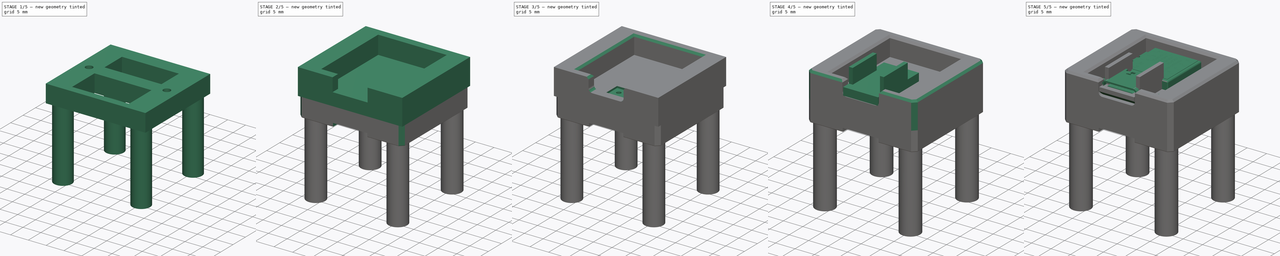
[diagram: build sequence overview — one tinted view per stage of 5, left to right]
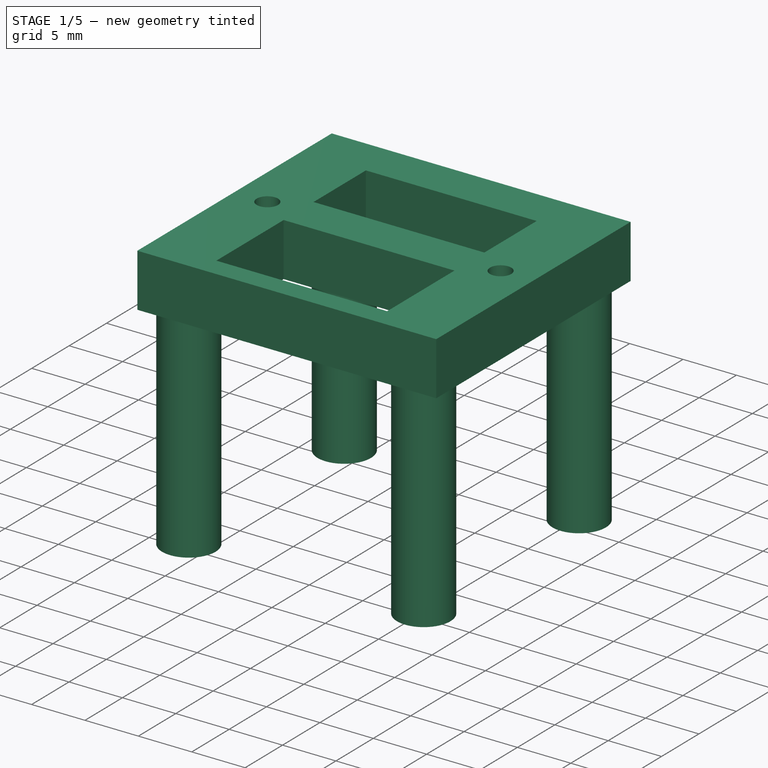
[diagram: stage 1 of 5 — iso view after this stage's code; geometry added in this stage tinted green]
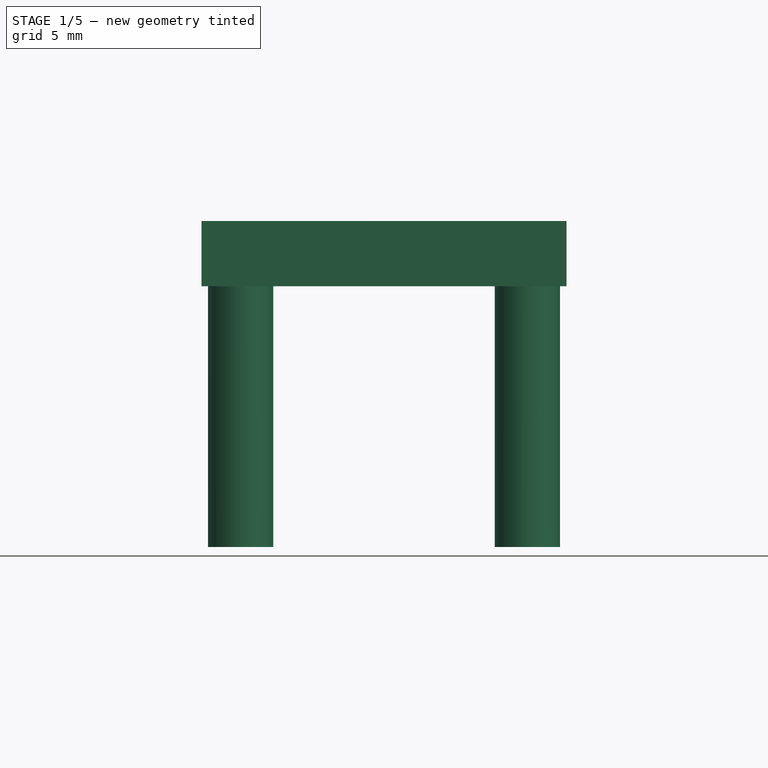
[diagram: stage 1 of 5 — front view after this stage's code; geometry added in this stage tinted green]
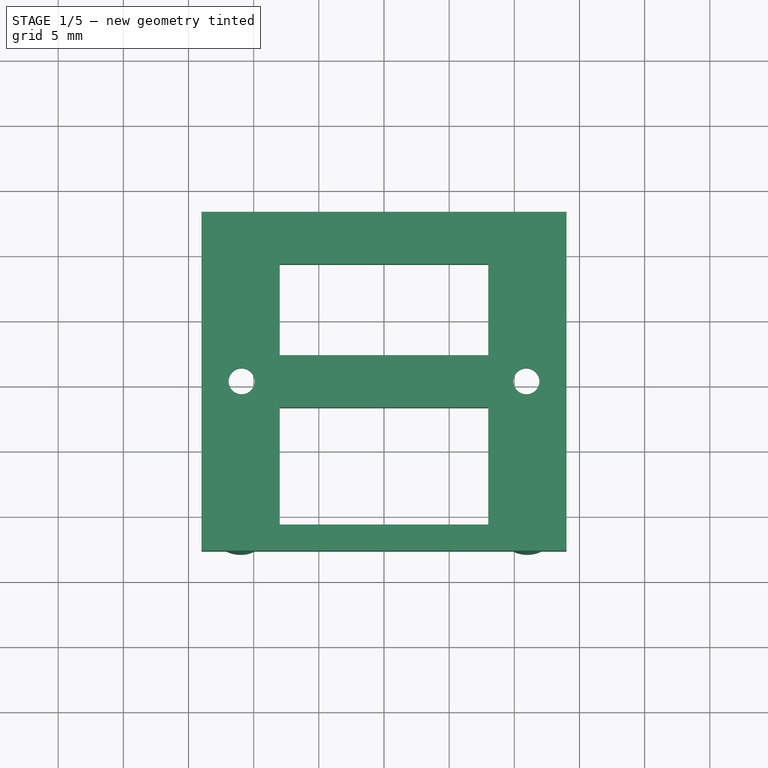
[diagram: stage 1 of 5 — top view after this stage's code; geometry added in this stage tinted green]
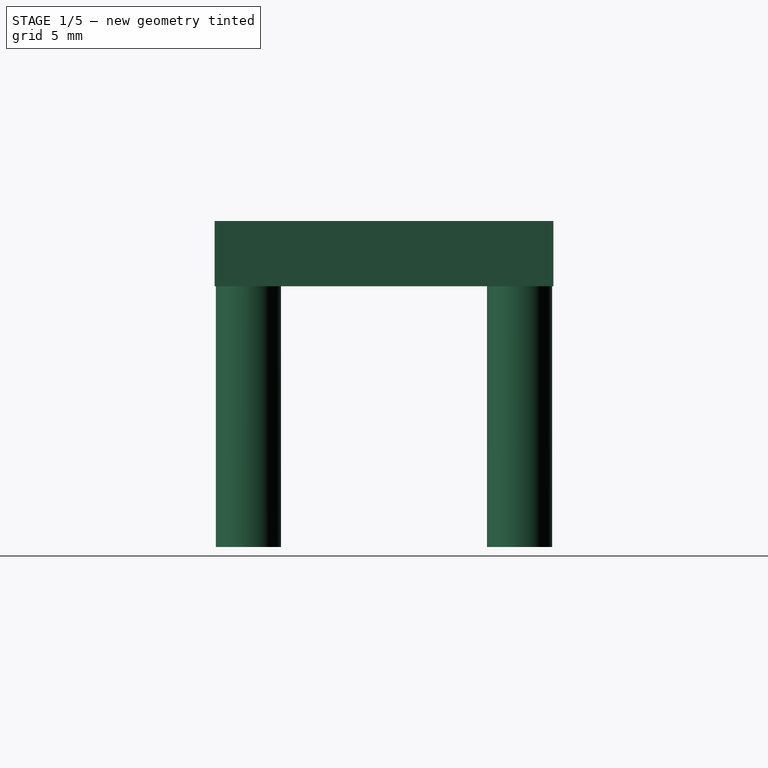
[diagram: stage 1 of 5 — right view after this stage's code; geometry added in this stage tinted green]
FCSTD DOCUMENT  (FreeCAD 0.20R29177 +426 (Git))
Label: Seeed XIAO programming platform
License: All rights reserved
LicenseURL: http://en.wikipedia.org/wiki/All_rights_reserved
objects: Sketcher::SketchObject×18, PartDesign::Pocket×12, PartDesign::Pad×6, PartDesign::Chamfer×6, Part::Feature×5, Part::FeaturePython×3, PartDesign::Body×3, Part::Compound2×1, App::DocumentObjectGroup×1, PartDesign::Fillet×1
note: 79 computed .brp shape members not serialized (recipe doc carries the construction recipe); baked Part::Feature solids carry a one-line shape summary decoded from their .brp

FEATURE [Sketcher::SketchObject] Sketch006
  AttachmentOffset = pos=(0,0,-3.5) rot=(0,0,1;0rad)
  FullyConstrained = true
  MapMode = 5
  Placement = pos=(0,0,-3.5) rot=(0,0,1;0rad)
  Support = -> [XY_Plane001]
  sketch-geometry (8):
    g0: LineSegment StartX=-14 StartY=13 StartZ=0 EndX=14 EndY=13 EndZ=0
    g1: LineSegment StartX=14 StartY=13 StartZ=0 EndX=14 EndY=-13 EndZ=0
    g2: LineSegment StartX=14 StartY=-13 StartZ=0 EndX=-14 EndY=-13 EndZ=0
    g3: LineSegment StartX=-14 StartY=-13 StartZ=0 EndX=-14 EndY=13 EndZ=0
    g4: LineSegment StartX=8 StartY=-11 StartZ=0 EndX=-8 EndY=-11 EndZ=0
    g5: LineSegment StartX=-8 StartY=-11 StartZ=0 EndX=-8 EndY=9 EndZ=0
    g6: LineSegment StartX=-8 StartY=9 StartZ=0 EndX=8 EndY=9 EndZ=0
    g7: LineSegment StartX=8 StartY=9 StartZ=0 EndX=8 EndY=-11 EndZ=0
  constraints (24):
    c: Coincident(g0,g1)
    c: Coincident(g1,g2)
    c: Coincident(g2,g3)
    c: Coincident(g3,g0)
    c: Horizontal(g0)
    c: Horizontal(g2)
    c: Vertical(g1)
    c: Vertical(g3)
    c: DistanceY(g-1,g0) = 13
    c: DistanceY(g2,g-1) = 13
    c: DistanceX(g0,g-1) = 14
    c: DistanceX(g-1,g0) = 14
    c: Coincident(g4,g5)
    c: Coincident(g5,g6)
    c: Coincident(g6,g7)
    c: Coincident(g7,g4)
    c: Horizontal(g4)
    c: Horizontal(g6)
    c: Vertical(g5)
    c: Vertical(g7)
    c: DistanceY(g4,g-1) = 11
    c: DistanceX(g5,g-1) = 8
    c: DistanceY(g-1,g5) = 9
    c: DistanceX(g-1,g6) = 8
FEATURE [PartDesign::Pad] Pad001  label="Feet_Support"
  Direction = (0,0,1)
  Length = 5
  Length2 = 10
  Profile = -> Sketch006
  ReferenceAxis = -> Sketch006 [N_Axis]
  Reversed = true
  Type = 0
FEATURE [Sketcher::SketchObject] Sketch007
  AttachmentOffset = pos=(0,0,-3.51) rot=(0,0,1;0rad)
  FullyConstrained = true
  MapMode = 5
  Placement = pos=(0,0,-3.51) rot=(0,0,1;0rad)
  Support = -> [XY_Plane001]
  sketch-geometry (8):
    g0: LineSegment StartX=-11 StartY=10.4 StartZ=0 EndX=11 EndY=10.4 EndZ=0
    g1: LineSegment StartX=11 StartY=10.4 StartZ=0 EndX=11 EndY=-10.4 EndZ=0
    g2: LineSegment StartX=11 StartY=-10.4 StartZ=0 EndX=-11 EndY=-10.4 EndZ=0
    g3: LineSegment StartX=-11 StartY=-10.4 StartZ=0 EndX=-11 EndY=10.4 EndZ=0
    g4: Circle CenterX=11 CenterY=-10.4 CenterZ=0 NormalX=0 NormalY=0 NormalZ=1 AngleXU=0 Radius=2.5
    g5: Circle CenterX=11 CenterY=10.4 CenterZ=0 NormalX=0 NormalY=0 NormalZ=1 AngleXU=0 Radius=2.5
    g6: Circle CenterX=-11 CenterY=-10.4 CenterZ=0 NormalX=0 NormalY=0 NormalZ=1 AngleXU=0 Radius=2.5
    g7: Circle CenterX=-11 CenterY=10.4 CenterZ=0 NormalX=0 NormalY=0 NormalZ=1 AngleXU=0 Radius=2.5
  constraints (20):
    c: Coincident(g0,g1)
    c: Coincident(g1,g2)
    c: Coincident(g2,g3)
    c: Coincident(g3,g0)
    c: Horizontal(g0)
    c: Horizontal(g2)
    c: Vertical(g1)
    c: Vertical(g3)
    c: DistanceX(g-1,g0) = 11
    c: DistanceX(g0,g-1) = 11
    c: DistanceY(g1,g-1) = 10.4
    c: DistanceY(g-1,g0) = 10.4
    c: Coincident(g4,g1)
    c: Coincident(g5,g0)
    c: Coincident(g6,g2)
    c: Equal(g5,g4)
    c: Equal(g4,g6)
    c: Diameter(g4) = 5
    c: Coincident(g7,g0)
    c: Equal(g7,g4)
FEATURE [PartDesign::Pad] Pad002  label="Feet"
  BaseFeature = -> Pad001
  Direction = (0,0,1)
  Length = 25
  Length2 = 10
  Profile = -> Sketch007
  ReferenceAxis = -> Sketch007 [N_Axis]
  Reversed = true
  Type = 0
FEATURE [Sketcher::SketchObject] Sketch008
  AttachmentOffset = pos=(0,0,-8.6) rot=(0,0,1;0rad)
  FullyConstrained = false
  MapMode = 5
  Placement = pos=(0,0,-8.6) rot=(0,0,1;0rad)
  Support = -> [XY_Plane001]
  sketch-geometry (4):
    g0: LineSegment StartX=0 StartY=0 StartZ=0 EndX=-10.9234 EndY=0 EndZ=0
    g1: LineSegment StartX=0 StartY=0 StartZ=0 EndX=10.9234 EndY=0 EndZ=0
    g2: Circle CenterX=-10.9234 CenterY=0 CenterZ=0 NormalX=0 NormalY=0 NormalZ=1 AngleXU=0 Radius=1.65
    g3: Circle CenterX=10.9234 CenterY=0 CenterZ=0 NormalX=0 NormalY=0 NormalZ=1 AngleXU=0 Radius=1.65
  constraints (9):
    c: Coincident(g0,g-1)
    c: PointOnObject(g0,g-1)
    c: Coincident(g1,g0)
    c: PointOnObject(g1,g-1)
    c: Equal(g0,g1)
    c: Coincident(g2,g0)
    c: Coincident(g3,g1)
    c: Equal(g2,g3)
    c: Diameter(g2) = 3.3
FEATURE [PartDesign::Pocket] Pocket004  label="Screw_Head_Socket"
  BaseFeature = -> Pad002
  Direction = (0,0,-1)
  Length = 3
  Length2 = 5
  Profile = -> Sketch008
  ReferenceAxis = -> Sketch008 [N_Axis]
  Reversed = true
  Type = 0
FEATURE [Sketcher::SketchObject] Sketch009  label="Screw_Through_Hole_Sketch"
  AttachmentOffset = pos=(0,0,-7.05) rot=(0,0,1;0rad)
  FullyConstrained = false
  MapMode = 5
  Placement = pos=(0,0,-7.05) rot=(0,0,1;0rad)
  Support = -> [XY_Plane001]
  sketch-geometry (4):
    g0: LineSegment StartX=0 StartY=0 StartZ=0 EndX=-10.9234 EndY=0 EndZ=0
    g1: LineSegment StartX=0 StartY=0 StartZ=0 EndX=10.9234 EndY=0 EndZ=0
    g2: Circle CenterX=-10.9234 CenterY=0 CenterZ=0 NormalX=0 NormalY=0 NormalZ=1 AngleXU=0 Radius=1
    g3: Circle CenterX=10.9234 CenterY=0 CenterZ=0 NormalX=0 NormalY=0 NormalZ=1 AngleXU=0 Radius=1
  constraints (9):
    c: Coincident(g0,g-1)
    c: PointOnObject(g0,g-1)
    c: Coincident(g1,g0)
    c: PointOnObject(g1,g-1)
    c: Equal(g0,g1)
    c: Coincident(g2,g0)
    c: Coincident(g3,g1)
    c: Equal(g2,g3)
    c: Diameter(g2) = 2
FEATURE [PartDesign::Pocket] Pocket005  label="Screw_Through_Hole_Pocket"
  BaseFeature = -> Pocket004
  Direction = (0,0,-1)
  Length = 4
  Length2 = 5
  Profile = -> Sketch009
  ReferenceAxis = -> Sketch009 [N_Axis]
  Reversed = true
  Type = 0
FEATURE [Sketcher::SketchObject] Sketch011
  AttachmentOffset = pos=(0,0,-3.5) rot=(0,0,1;0rad)
  FullyConstrained = true
  MapMode = 5
  Placement = pos=(0,0,-3.5) rot=(0,0,1;0rad)
  Support = -> [XY_Plane001]
  sketch-geometry (4):
    g0: LineSegment StartX=-8 StartY=2 StartZ=0 EndX=8 EndY=2 EndZ=0
    g1: LineSegment StartX=8 StartY=2 StartZ=0 EndX=8 EndY=-2 EndZ=0
    g2: LineSegment StartX=8 StartY=-2 StartZ=0 EndX=-8 EndY=-2 EndZ=0
    g3: LineSegment StartX=-8 StartY=-2 StartZ=0 EndX=-8 EndY=2 EndZ=0
  constraints (12):
    c: Coincident(g0,g1)
    c: Coincident(g1,g2)
    c: Coincident(g2,g3)
    c: Coincident(g3,g0)
    c: Horizontal(g0)
    c: Horizontal(g2)
    c: Vertical(g1)
    c: Vertical(g3)
    c: DistanceX(g0,g-1) = 8
    c: DistanceX(g-1,g1) = 8
    c: DistanceY(g-1,g0) = 2
    c: DistanceY(g2,g-1) = 2
FEATURE [PartDesign::Pad] Pad003
  BaseFeature = -> Pocket005
  Direction = (0,0,1)
  Length = 5
  Length2 = 10
  Profile = -> Sketch011
  ReferenceAxis = -> Sketch011 [N_Axis]
  Reversed = true
  Type = 0
FEATURE [Sketcher::SketchObject] Sketch012  label="Screw through hole"
  FullyConstrained = true
  MapMode = 5
  Placement = pos=(0,0,-8.5) rot=(1,0,0;3.14159rad)
  Support = -> [Pad003]
  sketch-geometry (1):
    g0: Circle CenterX=0 CenterY=0 CenterZ=0 NormalX=0 NormalY=0 NormalZ=1 AngleXU=0 Radius=0.8
  constraints (2):
    c: Coincident(g0,g-1)
    c: Diameter(g0) = 1.6
FEATURE [PartDesign::Pocket] Pocket007
  BaseFeature = -> Pad003
  Direction = (0,0,1)
  Length = 4
  Length2 = 5
  Profile = -> Sketch012
  ReferenceAxis = -> Sketch012 [N_Axis]
  Type = 0
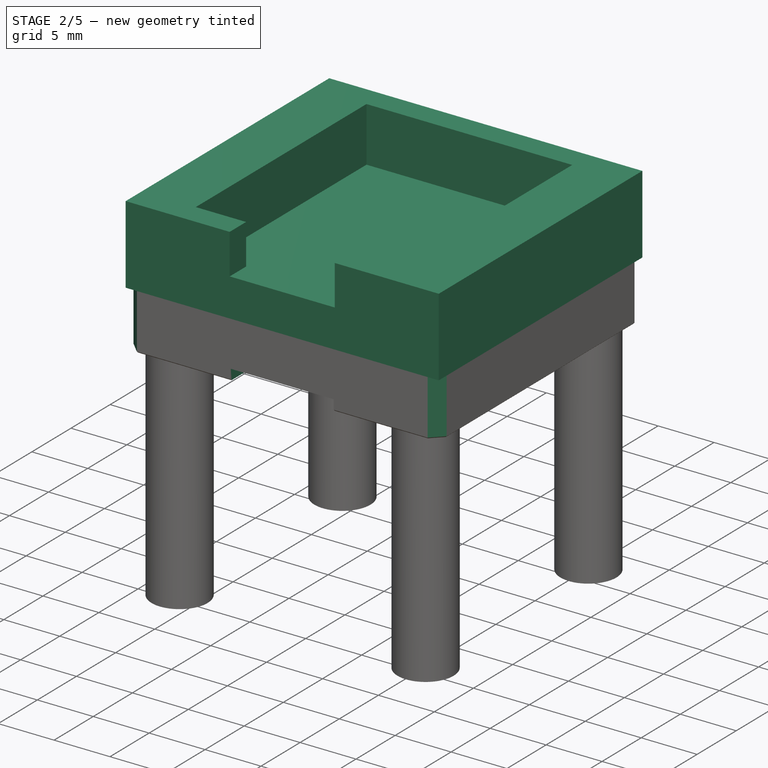
[diagram: stage 2 of 5 — iso view after this stage's code; geometry added in this stage tinted green]
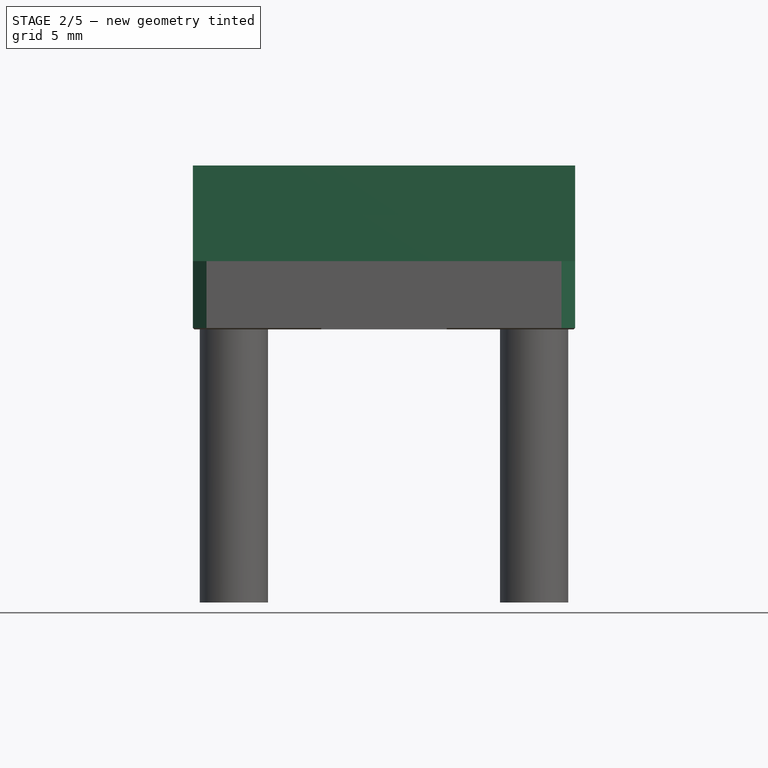
[diagram: stage 2 of 5 — front view after this stage's code; geometry added in this stage tinted green]
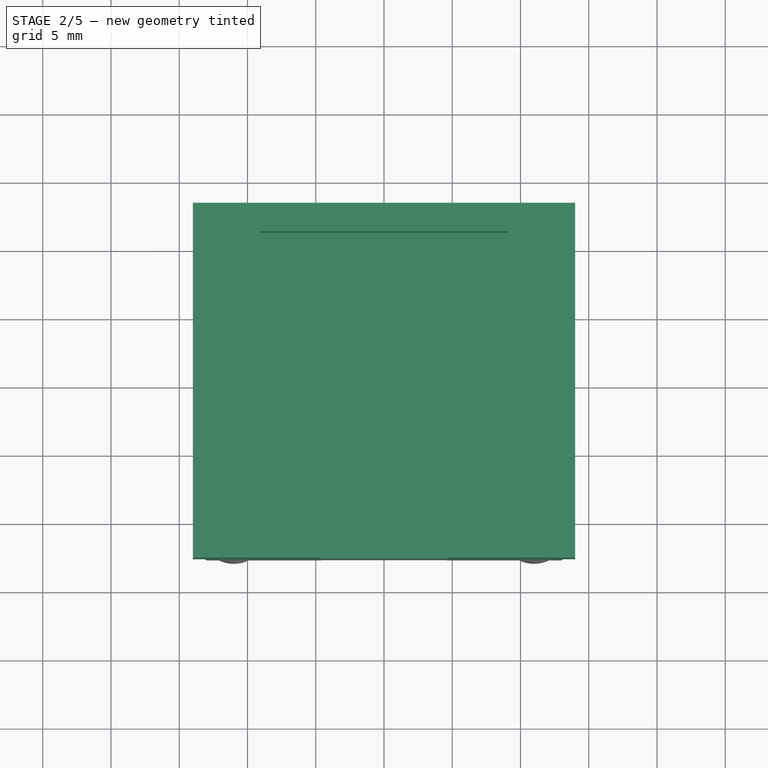
[diagram: stage 2 of 5 — top view after this stage's code; geometry added in this stage tinted green]
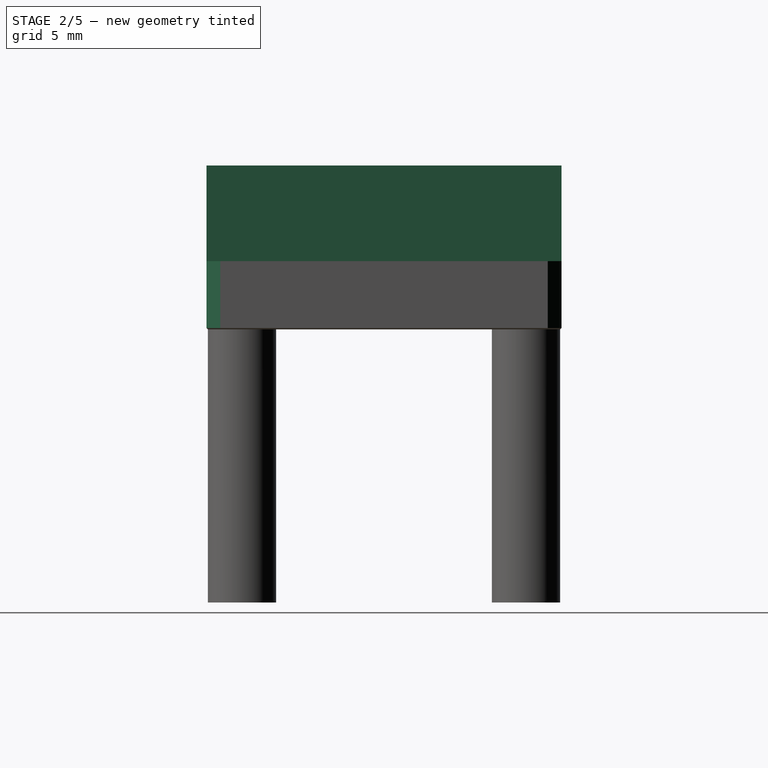
[diagram: stage 2 of 5 — right view after this stage's code; geometry added in this stage tinted green]
FEATURE [PartDesign::Pad] Pad
  Direction = (0,0,1)
  Length = 7
  Length2 = 10
  Midplane = true
  Profile = -> Sketch
  ReferenceAxis = -> Sketch [N_Axis]
  Type = 0
FEATURE [Sketcher::SketchObject] Sketch001
  AttachmentOffset = pos=(0,0,-1.4) rot=(0,0,1;0rad)
  FullyConstrained = true
  MapMode = 5
  Placement = pos=(0,0,-1.4) rot=(0,0,1;0rad)
  Support = -> [XY_Plane]
  sketch-geometry (4):
    g0: LineSegment StartX=-9.2 StartY=10.9 StartZ=0 EndX=9.2 EndY=10.9 EndZ=0
    g1: LineSegment StartX=9.2 StartY=10.9 StartZ=0 EndX=9.2 EndY=-10.9 EndZ=0
    g2: LineSegment StartX=9.2 StartY=-10.9 StartZ=0 EndX=-9.2 EndY=-10.9 EndZ=0
    g3: LineSegment StartX=-9.2 StartY=-10.9 StartZ=0 EndX=-9.2 EndY=10.9 EndZ=0
  constraints (12):
    c: Coincident(g0,g1)
    c: Coincident(g1,g2)
    c: Coincident(g2,g3)
    c: Coincident(g3,g0)
    c: Horizontal(g0)
    c: Horizontal(g2)
    c: Vertical(g1)
    c: Vertical(g3)
    c: DistanceX(g0,g-1) = 9.2
    c: DistanceX(g-1,g0) = 9.2
    c: DistanceY(g2,g-1) = 10.9
    c: DistanceY(g-1,g0) = 10.9
FEATURE [PartDesign::Pocket] Pocket
  BaseFeature = -> Pad
  Direction = (0,0,-1)
  Length = 5
  Length2 = 5
  Profile = -> Sketch001
  ReferenceAxis = -> Sketch001 [N_Axis]
  Reversed = true
  Type = 0
FEATURE [Sketcher::SketchObject] Sketch002
  AttachmentOffset = pos=(0,0,-0.1) rot=(0,0,1;0rad)
  FullyConstrained = true
  MapMode = 5
  Placement = pos=(0,0,-0.1) rot=(0,0,1;0rad)
  Support = -> [XY_Plane]
  sketch-geometry (4):
    g0: LineSegment StartX=-4.7 StartY=-10.48 StartZ=0 EndX=4.7 EndY=-10.48 EndZ=0
    g1: LineSegment StartX=4.7 StartY=-10.48 StartZ=0 EndX=4.7 EndY=-13.48 EndZ=0
    g2: LineSegment StartX=4.7 StartY=-13.48 StartZ=0 EndX=-4.7 EndY=-13.48 EndZ=0
    g3: LineSegment StartX=-4.7 StartY=-13.48 StartZ=0 EndX=-4.7 EndY=-10.48 EndZ=0
  constraints (12):
    c: Coincident(g0,g1)
    c: Coincident(g1,g2)
    c: Coincident(g2,g3)
    c: Coincident(g3,g0)
    c: Horizontal(g0)
    c: Horizontal(g2)
    c: Vertical(g1)
    c: Vertical(g3)
    c: DistanceY(g0,g-1) = 10.48
    c: DistanceX(g2,g-1) = 4.7
    c: DistanceX(g1) = 4.7
    c: DistanceY(g2,g0) = 3
FEATURE [PartDesign::Pocket] Pocket001
  BaseFeature = -> Pocket
  Direction = (0,0,-1)
  Length = 5
  Length2 = 5
  Profile = -> Sketch002
  ReferenceAxis = -> Sketch002 [N_Axis]
  Reversed = true
  Type = 0
FEATURE [Sketcher::SketchObject] Sketch013
  AttachmentOffset = pos=(0,0,-8.54) rot=(0,0,1;0rad)
  FullyConstrained = true
  MapMode = 5
  Placement = pos=(0,0,-8.54) rot=(0,0,1;0rad)
  Support = -> [XY_Plane001]
  sketch-geometry (4):
    g0: LineSegment StartX=-4.6 StartY=2 StartZ=0 EndX=4.6 EndY=2 EndZ=0
    g1: LineSegment StartX=4.6 StartY=2 StartZ=0 EndX=4.6 EndY=-13 EndZ=0
    g2: LineSegment StartX=4.6 StartY=-13 StartZ=0 EndX=-4.6 EndY=-13 EndZ=0
    g3: LineSegment StartX=-4.6 StartY=-13 StartZ=0 EndX=-4.6 EndY=2 EndZ=0
  constraints (12):
    c: Coincident(g0,g1)
    c: Coincident(g1,g2)
    c: Coincident(g2,g3)
    c: Coincident(g3,g0)
    c: Horizontal(g0)
    c: Horizontal(g2)
    c: Vertical(g1)
    c: Vertical(g3)
    c: DistanceX(g-1,g1) = 4.6
    c: DistanceX(g2,g-1) = 4.6
    c: DistanceY(g-1,g0) = 2
    c: DistanceY(g2,g-1) = 13
FEATURE [PartDesign::Pocket] Pocket008
  BaseFeature = -> Pocket007
  Direction = (0,0,-1)
  Length = 1
  Length2 = 5
  Profile = -> Sketch013
  ReferenceAxis = -> Sketch013 [N_Axis]
  Reversed = true
  Type = 0
FEATURE [PartDesign::Body] Body  label="Top"
  Group = -> [Sketch,Pad,Sketch001,Pocket,Sketch002,Pocket001,Sketch003,Pocket002,Sketch004,Pocket003,Sketch010,Pocket006,Chamfer001,Fillet,Chamfer002,Chamfer003]
  Origin = -> Origin
  Tip = -> Chamfer003
FEATURE [PartDesign::Chamfer] Chamfer004
  Angle = 45
  Base = -> Pocket008 [Edge2,Edge1,Edge8,Edge5]
  BaseFeature = -> Pocket008
  ChamferType = 0
  FlipDirection = false
  Size = 1
  Size2 = 1
  SupportTransform = false
  UseAllEdges = false
FEATURE [PartDesign::Chamfer] Chamfer005
  Angle = 45
  Base = -> Chamfer004 [Edge4,Edge25,Edge27,Edge29,Edge31,Edge30,Edge28,Edge26,Edge23]
  BaseFeature = -> Chamfer004
  ChamferType = 0
  FlipDirection = false
  Size = 0.1
  Size2 = 1
  SupportTransform = false
  UseAllEdges = false
FEATURE [PartDesign::Body] Body001  label="Feets"
  Group = -> [Sketch006,Pad001,Sketch007,Pad002,Sketch008,Pocket004,Sketch009,Pocket005,Sketch011,Pad003,Sketch012,Pocket007,Sketch013,Pocket008,Chamfer004,Chamfer005]
  Origin = -> Origin001
  Tip = -> Chamfer005
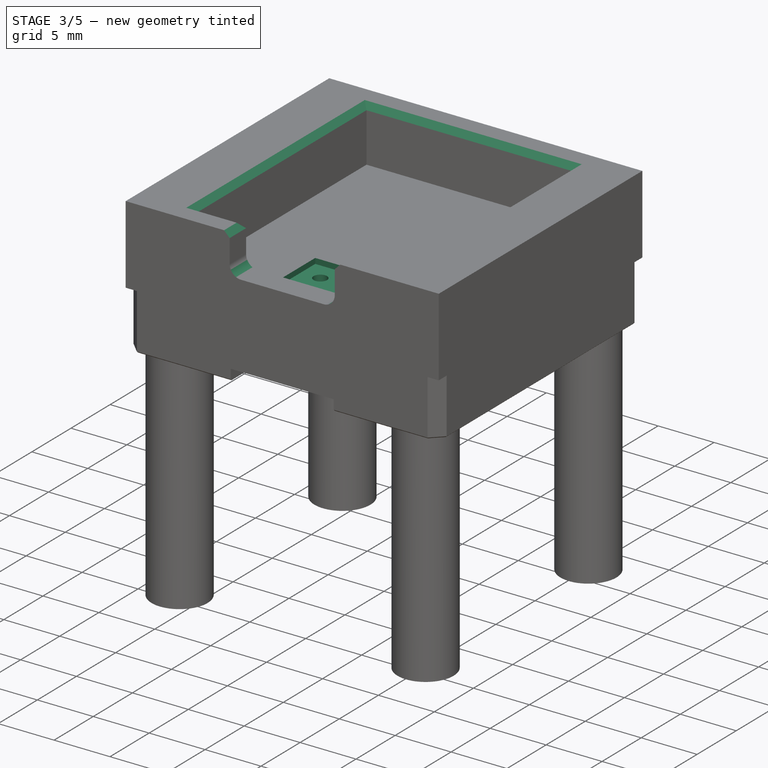
[diagram: stage 3 of 5 — iso view after this stage's code; geometry added in this stage tinted green]
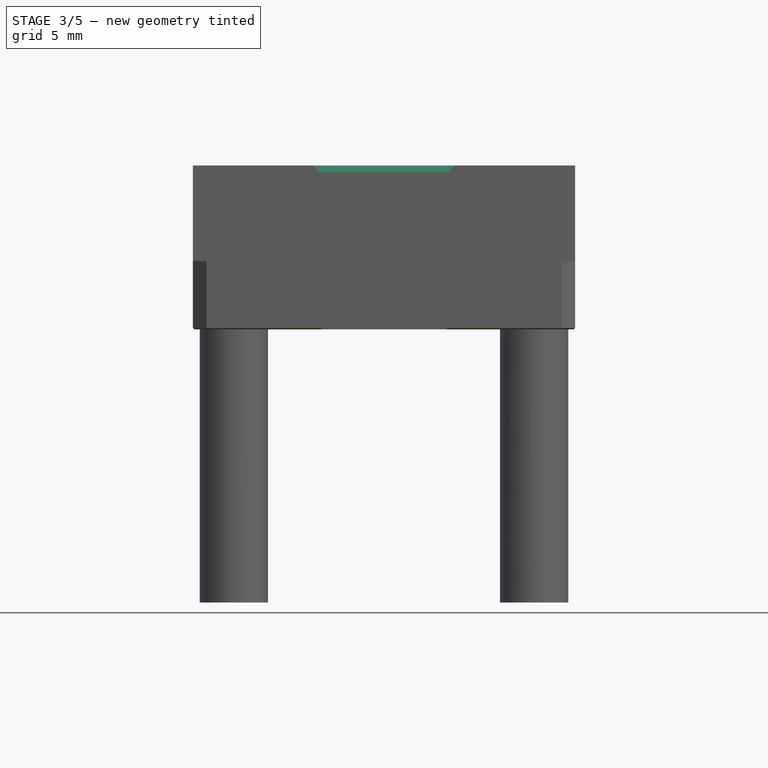
[diagram: stage 3 of 5 — front view after this stage's code; geometry added in this stage tinted green]
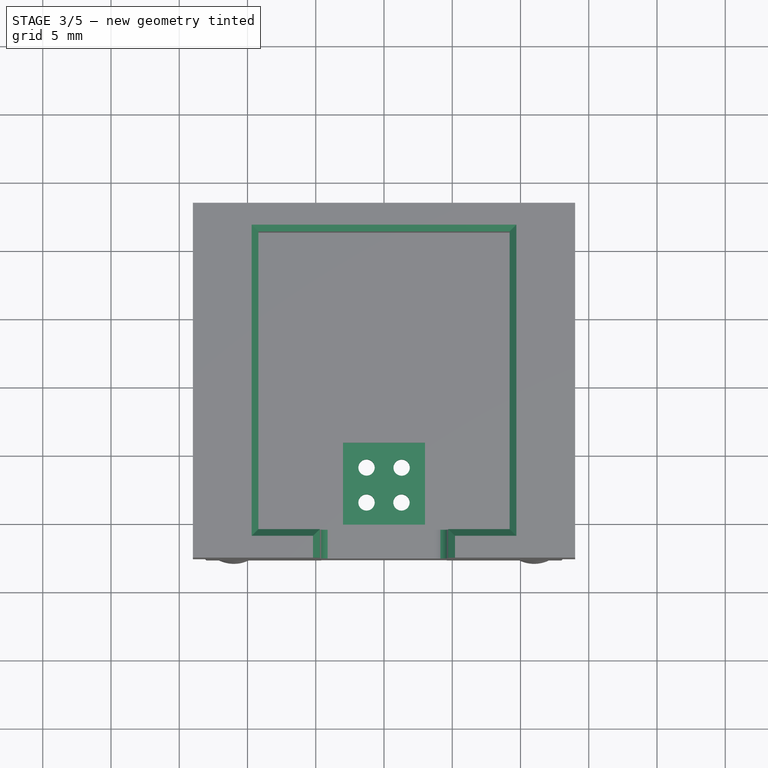
[diagram: stage 3 of 5 — top view after this stage's code; geometry added in this stage tinted green]
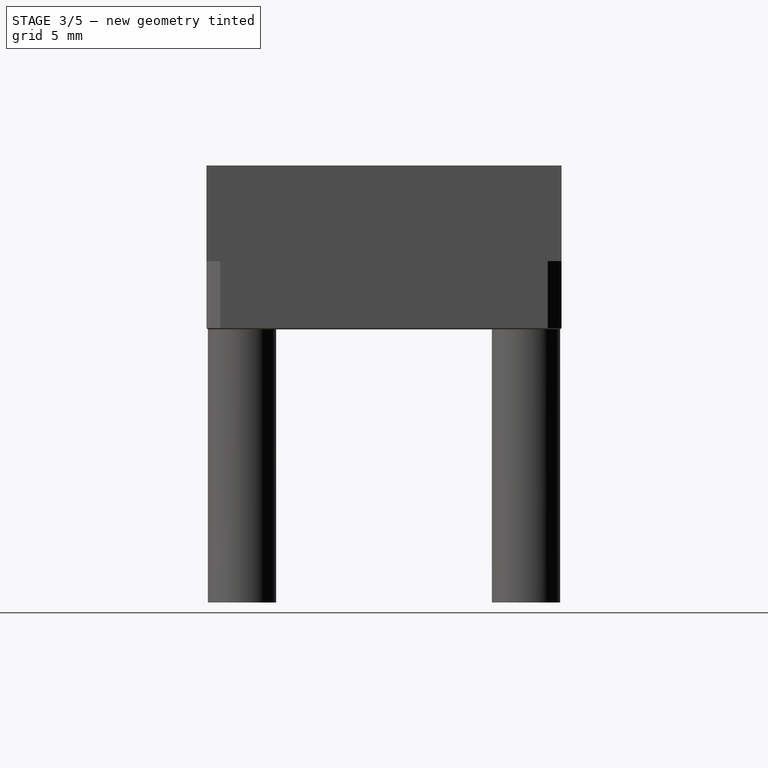
[diagram: stage 3 of 5 — right view after this stage's code; geometry added in this stage tinted green]
FEATURE [Sketcher::SketchObject] Sketch003  label="Solder_Pad"
  AttachmentOffset = pos=(0,7.5,-2.12) rot=(0,0,1;0rad)
  FullyConstrained = true
  MapMode = 5
  Placement = pos=(0,-7.5,-1.38) rot=(1,0,0;3.14159rad)
  Support = -> [Pocket001]
  sketch-geometry (4):
    g0: LineSegment StartX=-3 StartY=3 StartZ=0 EndX=3 EndY=3 EndZ=0
    g1: LineSegment StartX=3 StartY=3 StartZ=0 EndX=3 EndY=-3 EndZ=0
    g2: LineSegment StartX=3 StartY=-3 StartZ=0 EndX=-3 EndY=-3 EndZ=0
    g3: LineSegment StartX=-3 StartY=-3 StartZ=0 EndX=-3 EndY=3 EndZ=0
  constraints (12):
    c: Coincident(g0,g1)
    c: Coincident(g1,g2)
    c: Coincident(g2,g3)
    c: Coincident(g3,g0)
    c: Horizontal(g0)
    c: Horizontal(g2)
    c: Vertical(g1)
    c: Vertical(g3)
    c: DistanceX(g2,g-1) = 3
    c: DistanceX(g-1,g1) = 3
    c: DistanceY(g1,g-1) = 3
    c: DistanceY(g-1,g0) = 3
FEATURE [PartDesign::Pocket] Pocket002  label="Programming_Pad_Pocket"
  BaseFeature = -> Pocket001
  Direction = (0,0,1)
  Length = 0.5
  Length2 = 5
  Profile = -> Sketch003
  ReferenceAxis = -> Sketch003 [N_Axis]
  Reversed = true
  Type = 0
FEATURE [Sketcher::SketchObject] Sketch004  label="SWD_Pogo_Stick_Sketc"
  AttachmentOffset = pos=(0,-7.58,-1.3) rot=(0,0,1;0rad)
  FullyConstrained = false
  MapMode = 5
  Placement = pos=(0,-7.58,-1.3) rot=(0,0,1;0rad)
  Support = -> [XY_Plane]
  sketch-geometry (8):
    g0: LineSegment StartX=-1.28 StartY=-1.28 StartZ=0 EndX=1.28 EndY=-1.28 EndZ=0
    g1: LineSegment StartX=1.28 StartY=-1.28 StartZ=0 EndX=1.28 EndY=1.28 EndZ=0
    g2: LineSegment StartX=1.28 StartY=1.28 StartZ=0 EndX=-1.28 EndY=1.28 EndZ=0
    g3: LineSegment StartX=-1.28 StartY=1.28 StartZ=0 EndX=-1.28 EndY=-1.28 EndZ=0
    g4: Circle CenterX=-1.28 CenterY=1.28 CenterZ=0 NormalX=0 NormalY=0 NormalZ=1 AngleXU=0 Radius=0.6
    g5: Circle CenterX=1.29131 CenterY=1.27275 CenterZ=0 NormalX=0 NormalY=0 NormalZ=1 AngleXU=0 Radius=0.6
    g6: Circle CenterX=-1.28 CenterY=-1.28 CenterZ=0 NormalX=0 NormalY=0 NormalZ=1 AngleXU=0 Radius=0.6
    g7: Circle CenterX=1.28 CenterY=-1.28 CenterZ=0 NormalX=0 NormalY=0 NormalZ=1 AngleXU=0 Radius=0.6
  constraints (19):
    c: Coincident(g0,g1)
    c: Coincident(g1,g2)
    c: Coincident(g2,g3)
    c: Coincident(g3,g0)
    c: Horizontal(g0)
    c: Horizontal(g2)
    c: Vertical(g1)
    c: Vertical(g3)
    c: DistanceY(g0,g-1) = 1.28
    c: DistanceY(g-1,g2) = 1.28
    c: DistanceX(g0,g-1) = 1.28
    c: DistanceX(g-1,g0) = 1.28
    c: Coincident(g4,g2)
    c: Coincident(g6,g0)
    c: Coincident(g7,g0)
    c: Equal(g6,g7)
    c: Equal(g7,g5)
    c: Equal(g5,g4)
    c: Diameter(g4) = 1.2
FEATURE [PartDesign::Pocket] Pocket003  label="SWD_Programming_Pins_Pocket"
  BaseFeature = -> Pocket002
  Direction = (0,0,-1)
  Length = 5
  Length2 = 5
  Profile = -> Sketch004
  ReferenceAxis = -> Sketch004 [N_Axis]
  Type = 0
FEATURE [Sketcher::SketchObject] Sketch010  label="Screw_Socket"
  AttachmentOffset = pos=(0,0,-3.5) rot=(0,0,1;0rad)
  FullyConstrained = false
  MapMode = 5
  Placement = pos=(0,0,-3.5) rot=(0,0,1;0rad)
  Support = -> [XY_Plane]
  sketch-geometry (4):
    g0: LineSegment StartX=0 StartY=0 StartZ=0 EndX=-10.9234 EndY=0 EndZ=0
    g1: LineSegment StartX=0 StartY=0 StartZ=0 EndX=10.9234 EndY=0 EndZ=0
    g2: Circle CenterX=-10.9234 CenterY=0 CenterZ=0 NormalX=0 NormalY=0 NormalZ=1 AngleXU=0 Radius=0.8
    g3: Circle CenterX=10.9234 CenterY=0 CenterZ=0 NormalX=0 NormalY=0 NormalZ=1 AngleXU=0 Radius=0.8
  constraints (9):
    c: Coincident(g0,g-1)
    c: PointOnObject(g0,g-1)
    c: Coincident(g1,g0)
    c: PointOnObject(g1,g-1)
    c: Equal(g0,g1)
    c: Coincident(g2,g0)
    c: Coincident(g3,g1)
    c: Equal(g2,g3)
    c: Diameter(g2) = 1.6
FEATURE [PartDesign::Pocket] Pocket006  label="Screw_Socket_Pocket"
  BaseFeature = -> Pocket003
  Direction = (0,0,-1)
  Length = 5
  Length2 = 5
  Profile = -> Sketch010
  ReferenceAxis = -> Sketch010 [N_Axis]
  Reversed = true
  Type = 0
FEATURE [PartDesign::Body] Body002  label="Pogo_PCB_support"
  Group = -> [Sketch014,Pad004,Sketch015,Pocket009,Sketch016,Pocket010,Sketch017,Pad005,Sketch018,Pocket011,Chamfer]
  Origin = -> Origin002
  Placement = pos=(0,0,-9.5) rot=(0,0,1;0rad)
  Tip = -> Chamfer
FEATURE [PartDesign::Chamfer] Chamfer001
  Angle = 45
  Base = -> Pocket006 [Edge23,Edge25,Edge24,Edge19,Edge20,Edge21,Edge22]
  BaseFeature = -> Pocket006
  ChamferType = 0
  FlipDirection = false
  Size = 0.5
  Size2 = 1
  SupportTransform = false
  UseAllEdges = false
FEATURE [PartDesign::Fillet] Fillet
  Base = -> Chamfer001 [Edge40,Edge48]
  BaseFeature = -> Chamfer001
  Radius = 1
  SupportTransform = false
  UseAllEdges = false
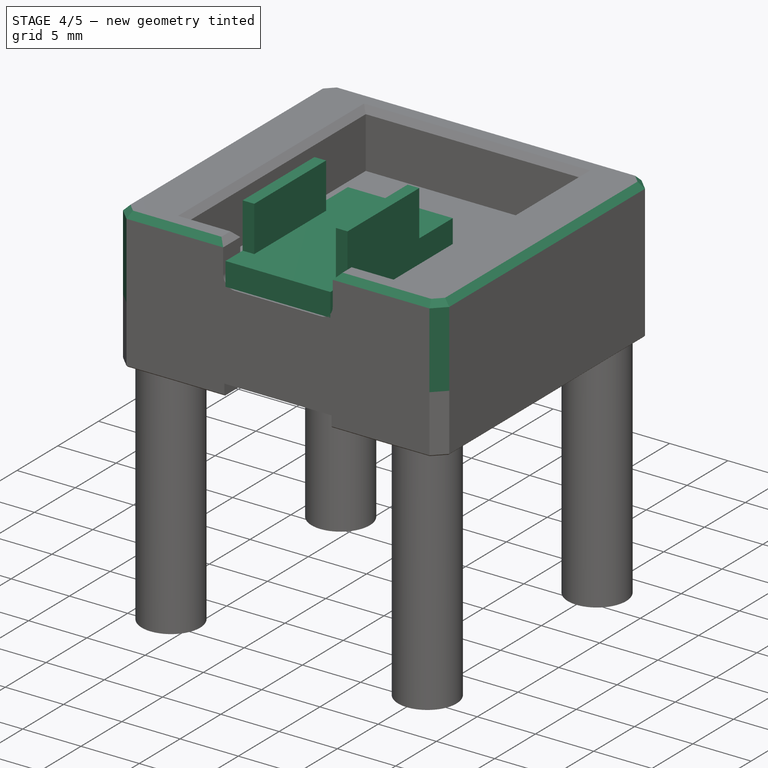
[diagram: stage 4 of 5 — iso view after this stage's code; geometry added in this stage tinted green]
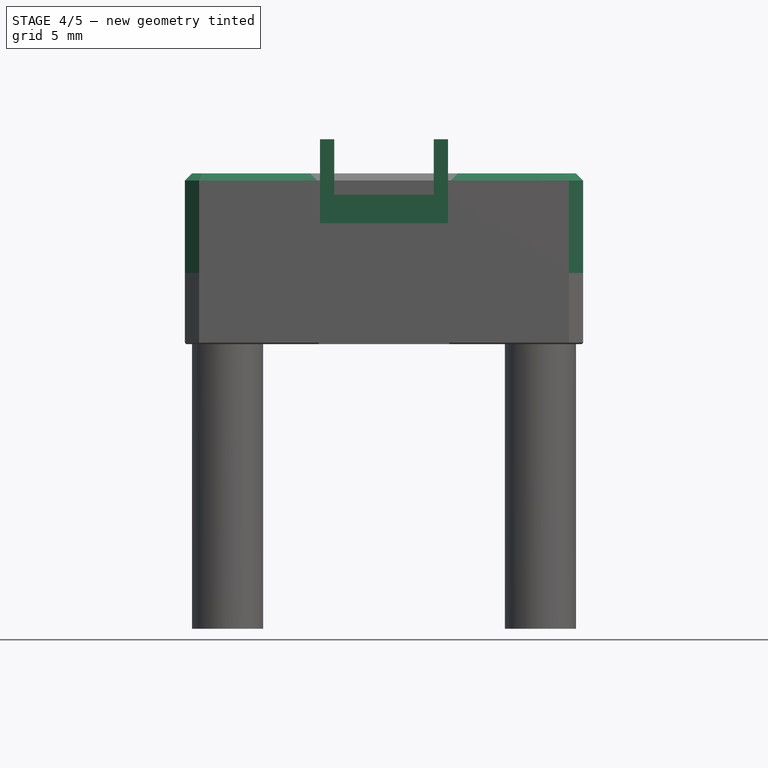
[diagram: stage 4 of 5 — front view after this stage's code; geometry added in this stage tinted green]
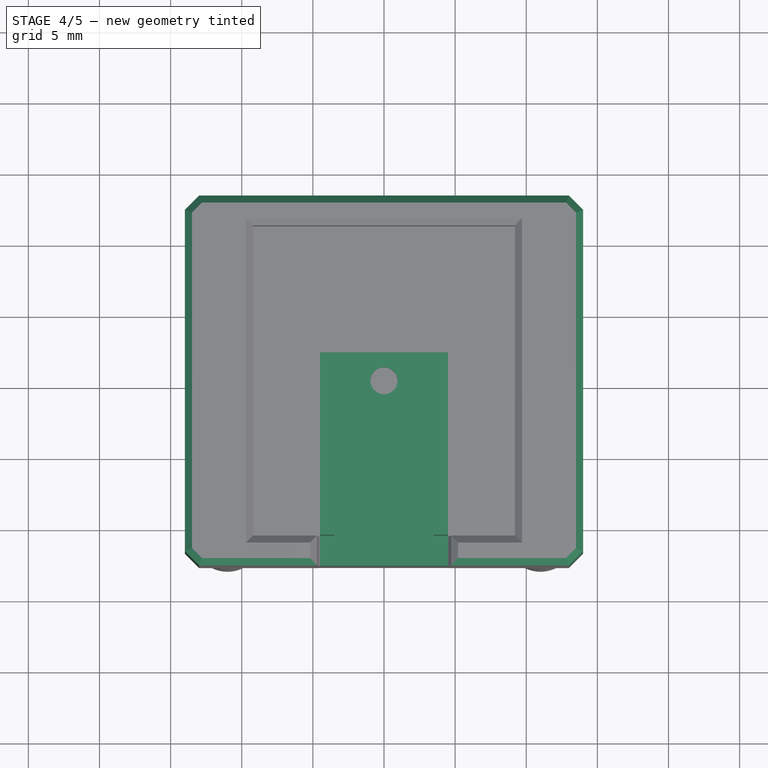
[diagram: stage 4 of 5 — top view after this stage's code; geometry added in this stage tinted green]
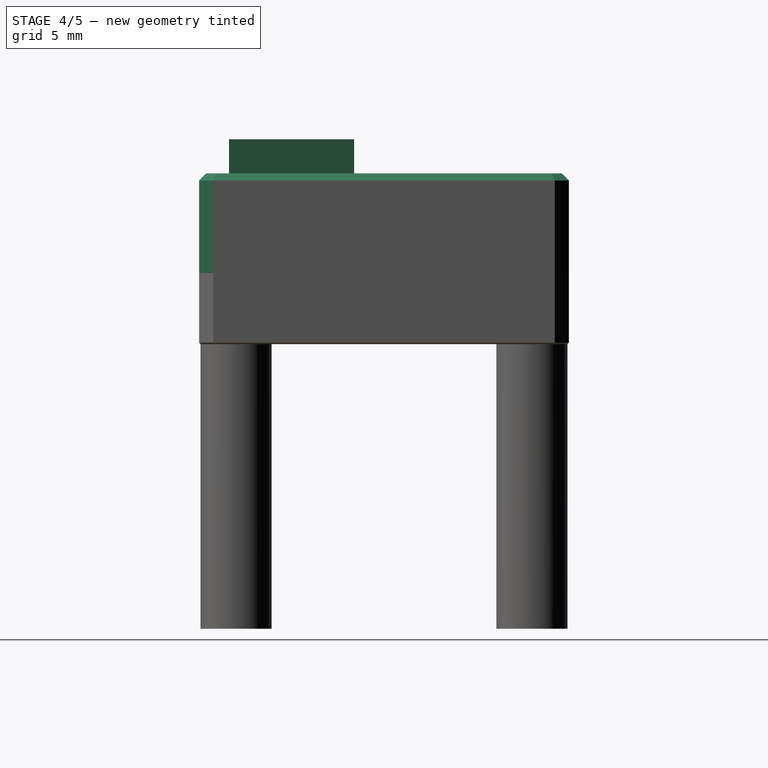
[diagram: stage 4 of 5 — right view after this stage's code; geometry added in this stage tinted green]
FEATURE [Sketcher::SketchObject] Sketch014
  FullyConstrained = true
  MapMode = 5
  Support = -> [XY_Plane002]
  sketch-geometry (4):
    g0: LineSegment StartX=-4.5 StartY=2 StartZ=0 EndX=4.5 EndY=2 EndZ=0
    g1: LineSegment StartX=4.5 StartY=2 StartZ=0 EndX=4.5 EndY=-13 EndZ=0
    g2: LineSegment StartX=4.5 StartY=-13 StartZ=0 EndX=-4.5 EndY=-13 EndZ=0
    g3: LineSegment StartX=-4.5 StartY=-13 StartZ=0 EndX=-4.5 EndY=2 EndZ=0
  constraints (12):
    c: Coincident(g0,g1)
    c: Coincident(g1,g2)
    c: Coincident(g2,g3)
    c: Coincident(g3,g0)
    c: Horizontal(g0)
    c: Horizontal(g2)
    c: Vertical(g1)
    c: Vertical(g3)
    c: DistanceY(g-1,g0) = 2
    c: DistanceY(g2,g-1) = 13
    c: DistanceX(g-1,g0) = 4.5
    c: DistanceX(g0,g-1) = 4.5
FEATURE [PartDesign::Pad] Pad004
  Direction = (0,0,1)
  Length = 2
  Length2 = 10
  Profile = -> Sketch014
  ReferenceAxis = -> Sketch014 [N_Axis]
  Type = 0
FEATURE [Sketcher::SketchObject] Sketch015  label="Screw through hole001"
  AttachmentOffset = pos=(0,0,-8.5) rot=(0,0,1;0rad)
  FullyConstrained = true
  MapMode = 5
  Placement = pos=(0,0,0) rot=(1,0,0;3.14159rad)
  Support = -> [Pad003]
  sketch-geometry (1):
    g0: Circle CenterX=0 CenterY=0 CenterZ=0 NormalX=0 NormalY=0 NormalZ=1 AngleXU=0 Radius=1.65
  constraints (2):
    c: Coincident(g0,g-1)
    c: Diameter(g0) = 3.3
FEATURE [PartDesign::Pocket] Pocket009
  BaseFeature = -> Pad004
  Direction = (0,0,1)
  Length = 1
  Length2 = 5
  Profile = -> Sketch015
  ReferenceAxis = -> Sketch015 [N_Axis]
  Type = 0
FEATURE [Sketcher::SketchObject] Sketch016  label="Screw through hole002"
  AttachmentOffset = pos=(0,0,-9) rot=(0,0,1;0rad)
  FullyConstrained = true
  MapMode = 5
  Placement = pos=(0,0,0.5) rot=(1,0,0;3.14159rad)
  Support = -> [Pad003]
  sketch-geometry (1):
    g0: Circle CenterX=0 CenterY=0 CenterZ=0 NormalX=0 NormalY=0 NormalZ=1 AngleXU=0 Radius=0.95
  constraints (2):
    c: Coincident(g0,g-1)
    c: Diameter(g0) = 1.9
FEATURE [PartDesign::Pocket] Pocket010
  BaseFeature = -> Pocket009
  Direction = (0,0,1)
  Length = 5
  Length2 = 5
  Profile = -> Sketch016
  ReferenceAxis = -> Sketch016 [N_Axis]
  Type = 0
FEATURE [Sketcher::SketchObject] Sketch017
  AttachmentOffset = pos=(0,0,2) rot=(0,0,1;0rad)
  FullyConstrained = true
  MapMode = 5
  Placement = pos=(0,0,2) rot=(0,0,1;0rad)
  Support = -> [XY_Plane002]
  sketch-geometry (8):
    g0: LineSegment StartX=-4.5 StartY=-2.1 StartZ=0 EndX=-3.5 EndY=-2.1 EndZ=0
    g1: LineSegment StartX=-3.5 StartY=-2.1 StartZ=0 EndX=-3.5 EndY=-10.9 EndZ=0
    g2: LineSegment StartX=-3.5 StartY=-10.9 StartZ=0 EndX=-4.5 EndY=-10.9 EndZ=0
    g3: LineSegment StartX=-4.5 StartY=-10.9 StartZ=0 EndX=-4.5 EndY=-2.1 EndZ=0
    g4: LineSegment StartX=3.5 StartY=-2.1 StartZ=0 EndX=4.5 EndY=-2.1 EndZ=0
    g5: LineSegment StartX=4.5 StartY=-2.1 StartZ=0 EndX=4.5 EndY=-10.9 EndZ=0
    g6: LineSegment StartX=4.5 StartY=-10.9 StartZ=0 EndX=3.5 EndY=-10.9 EndZ=0
    g7: LineSegment StartX=3.5 StartY=-10.9 StartZ=0 EndX=3.5 EndY=-2.1 EndZ=0
  constraints (24):
    c: Coincident(g0,g1)
    c: Coincident(g1,g2)
    c: Coincident(g2,g3)
    c: Coincident(g3,g0)
    c: Horizontal(g0)
    c: Horizontal(g2)
    c: Vertical(g1)
    c: Vertical(g3)
    c: Coincident(g4,g5)
    c: Coincident(g5,g6)
    c: Coincident(g6,g7)
    c: Coincident(g7,g4)
    c: Horizontal(g4)
    c: Horizontal(g6)
    c: Vertical(g5)
    c: Vertical(g7)
    c: DistanceX(g0,g-1) = 4.5
    c: DistanceX(g-1,g4) = 4.5
    c: DistanceX(g0,g0) = 1
    c: Equal(g4,g0)
    c: DistanceY(g0,g-1) = 2.1
    c: DistanceY(g4,g-1) = 2.1
    c: DistanceY(g2,g-1) = 10.9
    c: Equal(g5,g3)
FEATURE [PartDesign::Pad] Pad005
  BaseFeature = -> Pocket010
  Direction = (0,0,1)
  Length = 3.9
  Length2 = 10
  Profile = -> Sketch017
  ReferenceAxis = -> Sketch017 [N_Axis]
  Type = 0
FEATURE [PartDesign::Chamfer] Chamfer002
  Angle = 45
  Base = -> Fillet [Edge11,Edge46,Edge33,Edge7]
  BaseFeature = -> Fillet
  ChamferType = 0
  FlipDirection = false
  Size = 1
  Size2 = 1
  SupportTransform = false
  UseAllEdges = false
FEATURE [PartDesign::Chamfer] Chamfer003
  Angle = 45
  Base = -> Chamfer002 [Edge23,Edge25,Edge1,Edge8,Edge13,Edge15,Edge21,Edge19,Edge17]
  BaseFeature = -> Chamfer002
  ChamferType = 0
  FlipDirection = false
  Size = 0.5
  Size2 = 1
  SupportTransform = false
  UseAllEdges = false
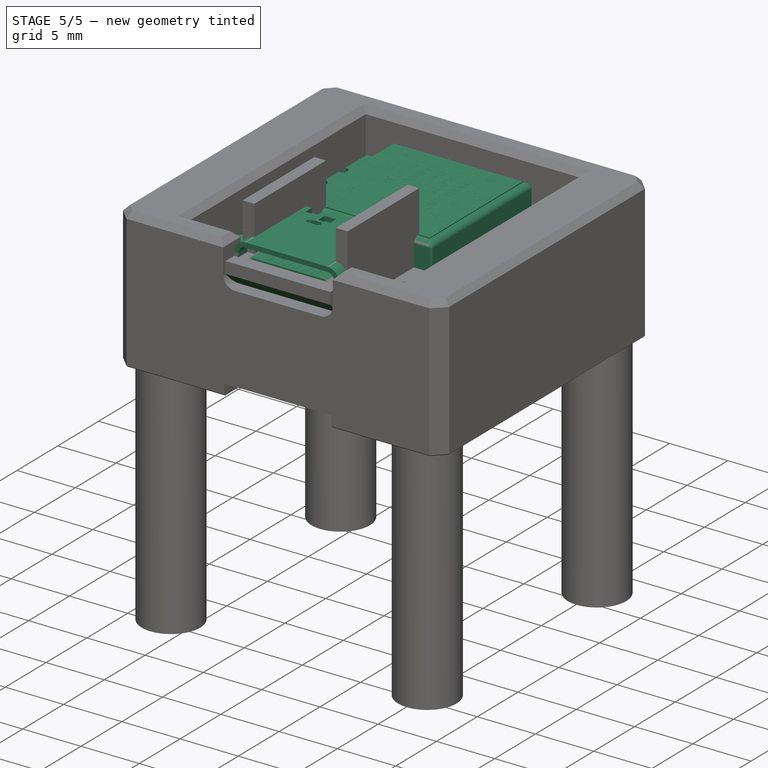
[diagram: stage 5 of 5 — iso view after this stage's code; geometry added in this stage tinted green]
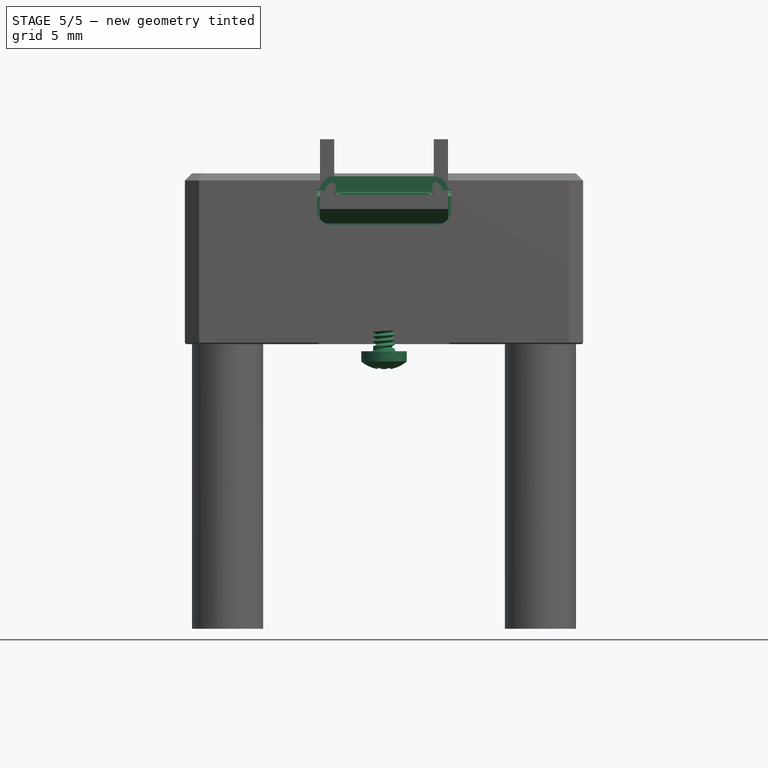
[diagram: stage 5 of 5 — front view after this stage's code; geometry added in this stage tinted green]
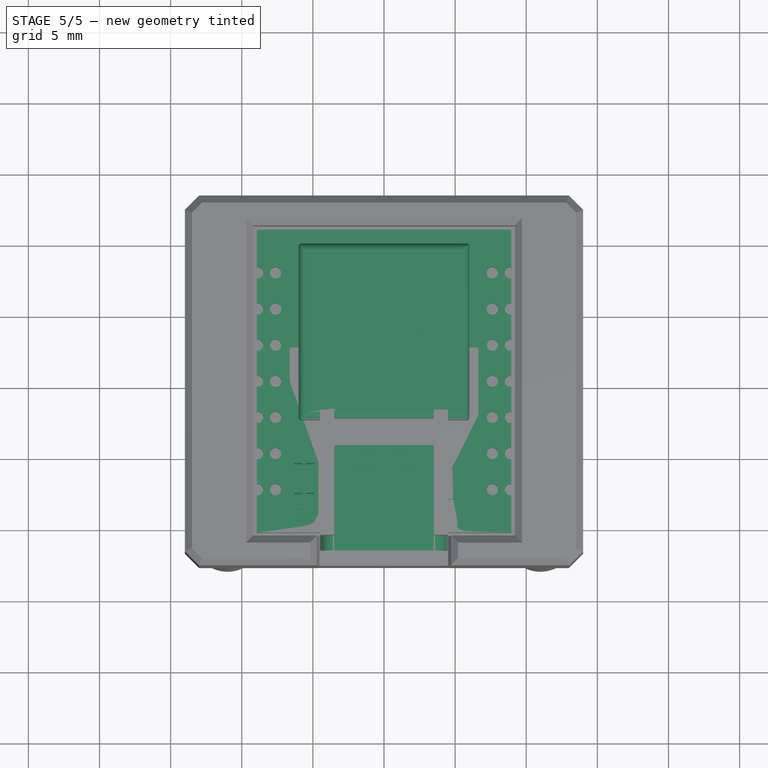
[diagram: stage 5 of 5 — top view after this stage's code; geometry added in this stage tinted green]
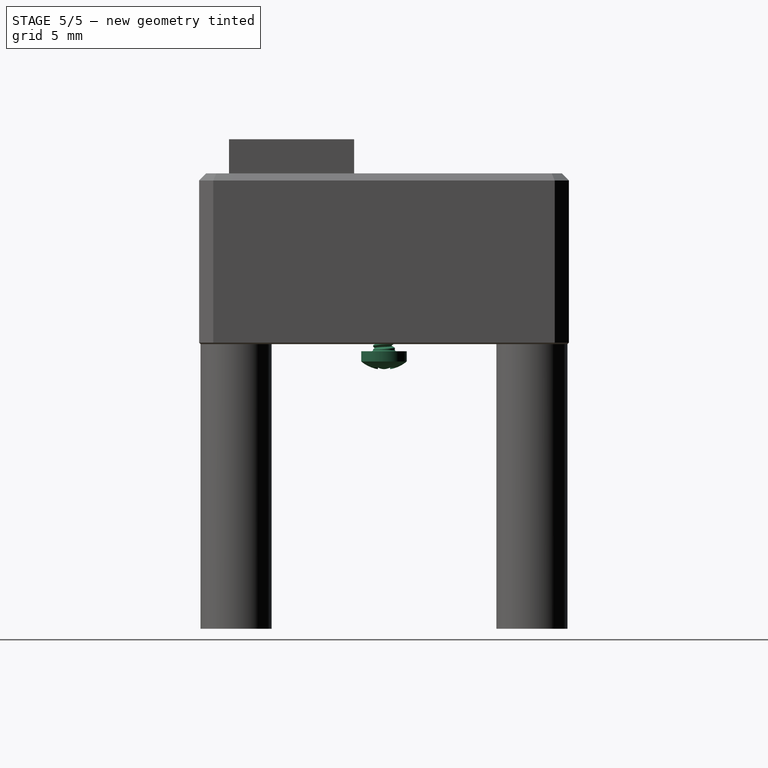
[diagram: stage 5 of 5 — right view after this stage's code; geometry added in this stage tinted green]
FEATURE [Sketcher::SketchObject] Sketch
  FullyConstrained = true
  MapMode = 5
  Support = -> [XY_Plane]
  sketch-geometry (4):
    g0: LineSegment StartX=-14 StartY=13 StartZ=0 EndX=14 EndY=13 EndZ=0
    g1: LineSegment StartX=14 StartY=13 StartZ=0 EndX=14 EndY=-13 EndZ=0
    g2: LineSegment StartX=14 StartY=-13 StartZ=0 EndX=-14 EndY=-13 EndZ=0
    g3: LineSegment StartX=-14 StartY=-13 StartZ=0 EndX=-14 EndY=13 EndZ=0
  constraints (12):
    c: Coincident(g0,g1)
    c: Coincident(g1,g2)
    c: Coincident(g2,g3)
    c: Coincident(g3,g0)
    c: Horizontal(g0)
    c: Horizontal(g2)
    c: Vertical(g1)
    c: Vertical(g3)
    c: DistanceY(g-1,g0) = 13
    c: DistanceY(g2,g-1) = 13
    c: DistanceX(g0,g-1) = 14
    c: DistanceX(g-1,g0) = 14
FEATURE [Part::Feature] Solid
  shape: bbox 12 x 2.3 x 12.4 mm, 18 faces (baked)
FEATURE [Part::Feature] Solid001
  shape: bbox 9 x 3.3 x 8.2 mm, 155 faces (baked)
FEATURE [Part::Feature] Solid002
  shape: bbox 11 x 0.088 x 11.4 mm, 815 faces (baked)
FEATURE [Part::Feature] Solid003
  shape: bbox 8.2 x 2.4 x 7.2 mm, 45 faces (baked)
FEATURE [Part::Feature] Solid004
  shape: bbox 17.9 x 1.61 x 21.3 mm, 1252 faces (baked)
FEATURE [Part::Compound2] Compound  label="STEP214 Seeeduino XIAO Arduino"
  Links = -> [Solid,Solid001,Solid002,Solid003,Solid004]
  Placement = pos=(0,0,0) rot=(1,0,0;1.5708rad)
FEATURE [Part::FeaturePython] Screw  label="M1.7x5-Screw"  # Fasteners workbench fastener (typed FeaturePython)
  Placement = pos=(10.92,0,-6) rot=(1,0,0;3.14159rad)
  diameter = 1
  invert = false
  leftHanded = false
  length = 2
  lengthCustom = 5
  matchOuter = false
  offset = 0
  thread = true
  type = 46
FEATURE [Part::FeaturePython] Screw001  label="M1.7x5-Screw001"  # Fasteners workbench fastener (typed FeaturePython)
  Placement = pos=(-10.92,0,-6) rot=(1,0,0;3.14159rad)
  diameter = 1
  invert = false
  leftHanded = false
  length = 2
  lengthCustom = 5
  matchOuter = false
  offset = 0
  thread = true
  type = 46
FEATURE [Part::FeaturePython] Screw002  label="M1.7x5-Screw002"  # Fasteners workbench fastener (typed FeaturePython)
  Placement = pos=(0,0,-9) rot=(1,0,0;3.14159rad)
  diameter = 1
  invert = false
  leftHanded = false
  length = 2
  lengthCustom = 5
  matchOuter = false
  offset = 0
  thread = true
  type = 46
FEATURE [App::DocumentObjectGroup] Group  label="Screws"
  Group = -> [Screw,Screw001,Screw002]
FEATURE [Sketcher::SketchObject] Sketch018  label="SWD_Pogo_Stick_Sketc001"
  AttachmentOffset = pos=(0,-7.58,0) rot=(0,0,1;0rad)
  FullyConstrained = false
  MapMode = 5
  Placement = pos=(0,-7.58,0) rot=(0,0,1;0rad)
  Support = -> [XY_Plane002]
  sketch-geometry (8):
    g0: LineSegment StartX=-1.28 StartY=-1.28 StartZ=0 EndX=1.28 EndY=-1.28 EndZ=0
    g1: LineSegment StartX=1.28 StartY=-1.28 StartZ=0 EndX=1.28 EndY=1.28 EndZ=0
    g2: LineSegment StartX=1.28 StartY=1.28 StartZ=0 EndX=-1.28 EndY=1.28 EndZ=0
    g3: LineSegment StartX=-1.28 StartY=1.28 StartZ=0 EndX=-1.28 EndY=-1.28 EndZ=0
    g4: Circle CenterX=-1.28 CenterY=1.28 CenterZ=0 NormalX=0 NormalY=0 NormalZ=1 AngleXU=0 Radius=0.6
    g5: Circle CenterX=1.29131 CenterY=1.27275 CenterZ=0 NormalX=0 NormalY=0 NormalZ=1 AngleXU=0 Radius=0.6
    g6: Circle CenterX=-1.28 CenterY=-1.28 CenterZ=0 NormalX=0 NormalY=0 NormalZ=1 AngleXU=0 Radius=0.6
    g7: Circle CenterX=1.28 CenterY=-1.28 CenterZ=0 NormalX=0 NormalY=0 NormalZ=1 AngleXU=0 Radius=0.6
  constraints (19):
    c: Coincident(g0,g1)
    c: Coincident(g1,g2)
    c: Coincident(g2,g3)
    c: Coincident(g3,g0)
    c: Horizontal(g0)
    c: Horizontal(g2)
    c: Vertical(g1)
    c: Vertical(g3)
    c: DistanceY(g0,g-1) = 1.28
    c: DistanceY(g-1,g2) = 1.28
    c: DistanceX(g0,g-1) = 1.28
    c: DistanceX(g-1,g0) = 1.28
    c: Coincident(g4,g2)
    c: Coincident(g6,g0)
    c: Coincident(g7,g0)
    c: Equal(g6,g7)
    c: Equal(g7,g5)
    c: Equal(g5,g4)
    c: Diameter(g4) = 1.2
FEATURE [PartDesign::Pocket] Pocket011
  BaseFeature = -> Pad005
  Direction = (0,0,-1)
  Length = 5
  Length2 = 5
  Profile = -> Sketch018
  ReferenceAxis = -> Sketch018 [N_Axis]
  Reversed = true
  Type = 0
FEATURE [PartDesign::Chamfer] Chamfer
  Angle = 45
  Base = -> Pocket011 [Edge15]
  BaseFeature = -> Pocket011
  ChamferType = 0
  FlipDirection = false
  Size = 1
  Size2 = 1
  SupportTransform = false
  UseAllEdges = false
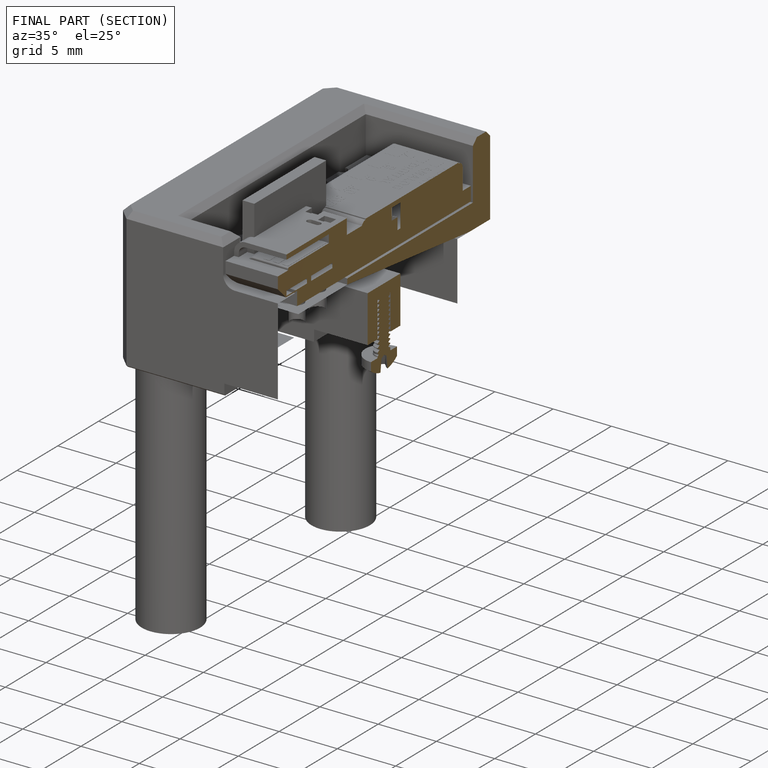
[diagram: finished part — half-section view (interior)]
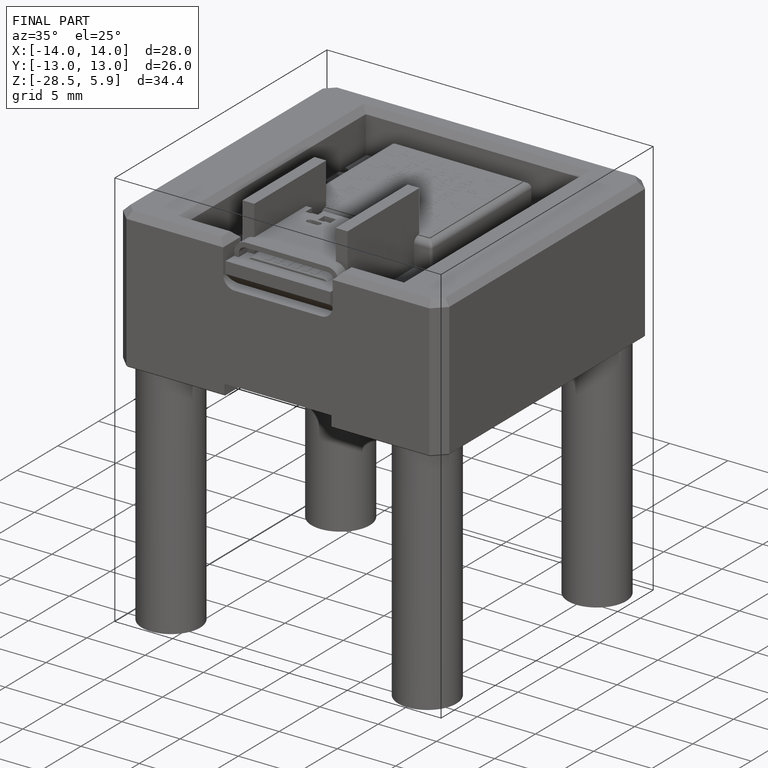
[diagram: finished part — iso view with bounding-box wireframe]
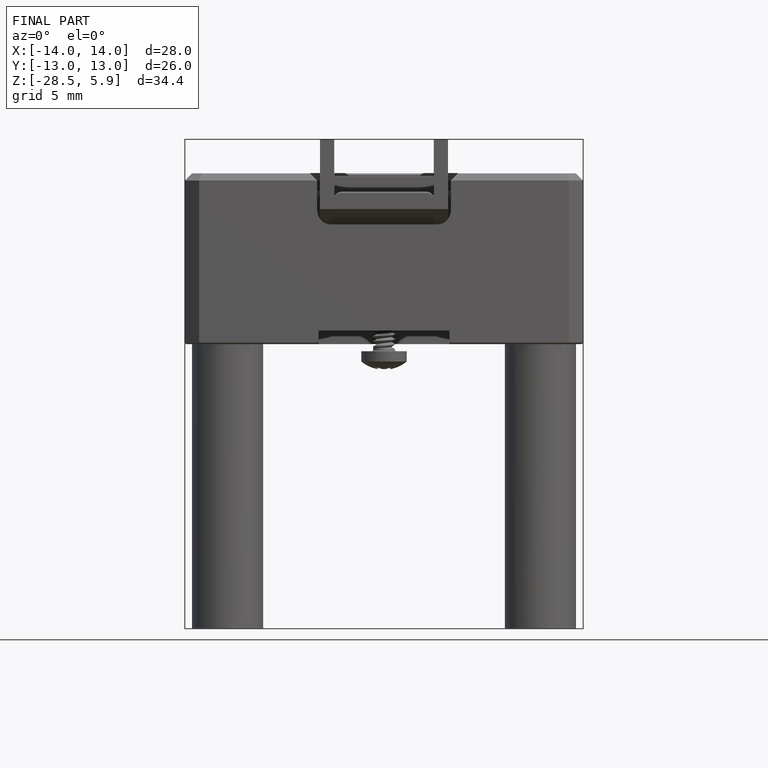
[diagram: finished part — front view with bounding-box wireframe]
